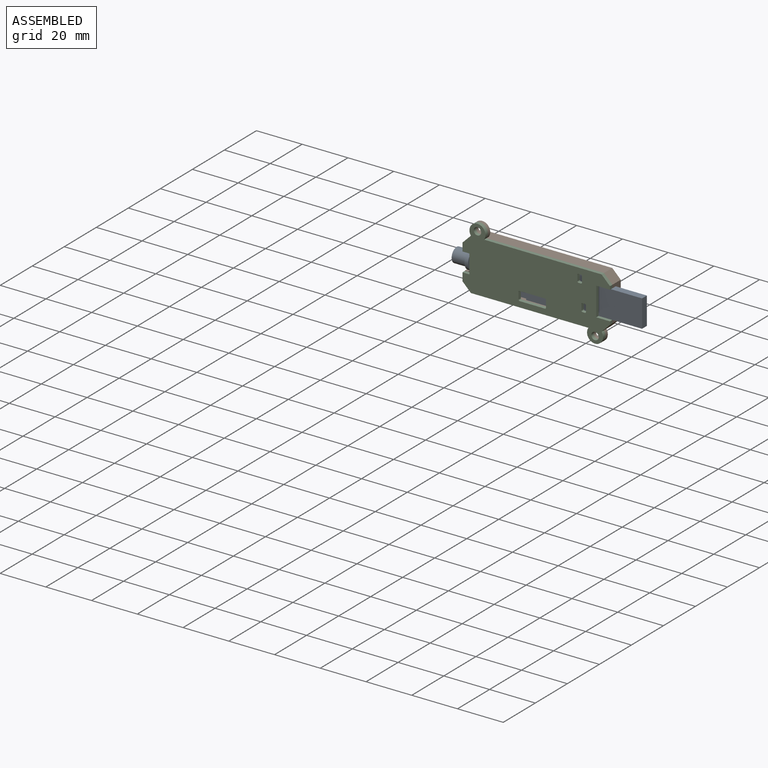
[diagram: assembled view]
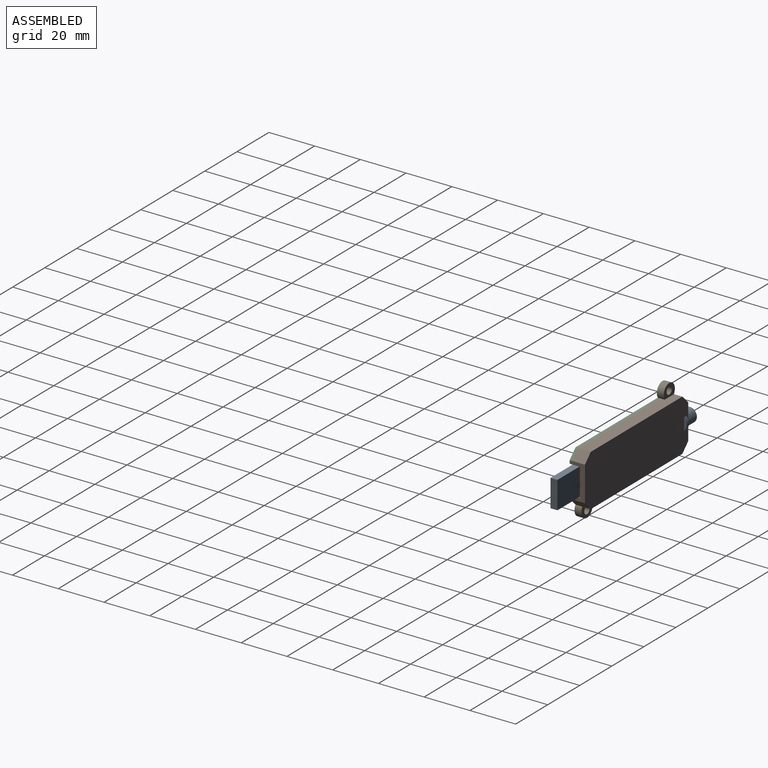
[diagram: assembled view, second angle]
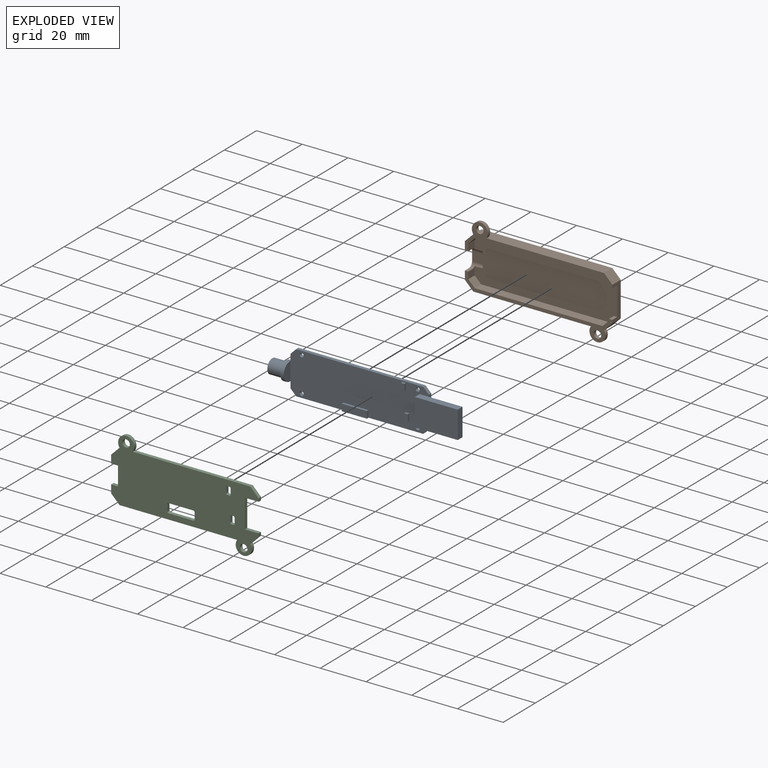
[diagram: exploded view]
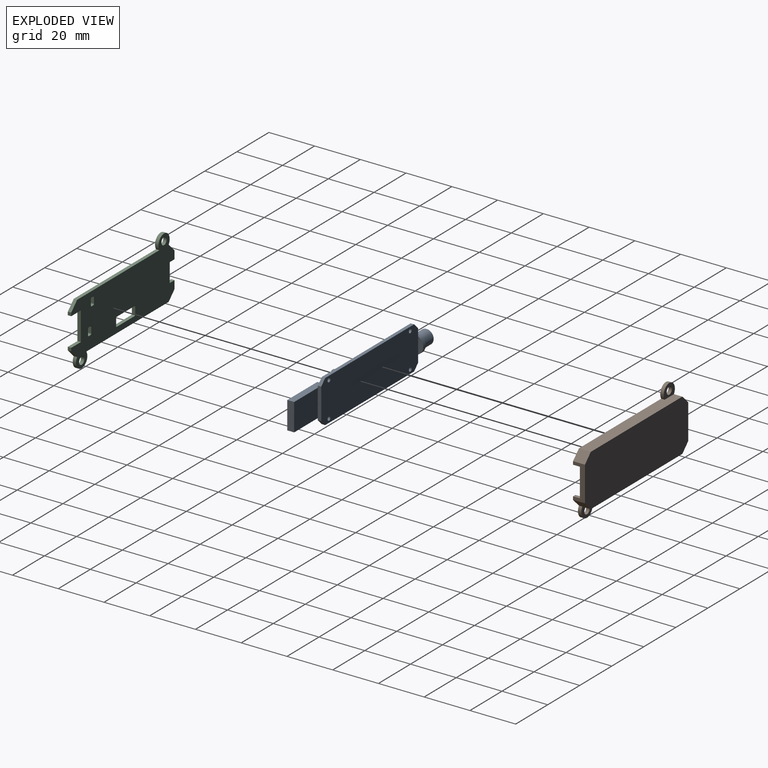
[diagram: exploded view, second angle]
ASSEMBLY  parts=3 mates=2
PART A: 41 faces, bbox 83x8x18.6 mm
  f0: plane 8x4.25mm, normal (1,0,0), area 27.1mm2, adj f1,f7
  f1: cylinder r=4mm len=8mm, axis (1,0,0), area 37.7mm2, adj f0,f2,f3,f6,f10
  f2: plane 8x8mm, normal (-1,0,0), area 19.6mm2, adj f1,f4
  f3: plane 7.19x2.25mm, normal (1,0,0), area 11.6mm2, adj f1,f12
  f4: cylinder r=3.12mm len=6.25mm, axis (1,0,0), area 122.7mm2, adj f2,f5
  f5: plane 6.25x6.25mm, normal (-1,0,0), area 30.7mm2, adj f4
  f6: plane 3.22x1.5mm, normal (-1,0,0), area 4.5mm2, adj f1,f7,f12,f15
  f7: plane 60.5x18.63mm, normal (0,-1,0), area 1015mm2, adj f0,f6,f8,f9,f10,f11,f13,f14
  f8: plane 13.63x1.5mm, normal (1,0,0), area 20.4mm2, adj f7,f12,f13,f14,f40
  f9: plane 55.5x1.5mm, normal (0,0,1), area 83.2mm2, adj f7,f12,f13,f15
  f10: plane 3.22x1.5mm, normal (-1,0,0), area 4.5mm2, adj f1,f7,f12,f16
  f11: plane 55.5x2.5mm, normal (0,0,-1), area 94.2mm2, adj f7,f12,f14,f16,f21,f22,f24
  f12: plane 60.5x18.63mm, normal (0,1,0), area 1105mm2, adj f3,f6,f8,f9,f10,f11,f13,f14
  f13: plane 2.5x2.5mm, normal (0.71,0,0.71), area 5.3mm2, adj f7,f8,f9,f12
  f14: plane 2.5x2.5mm, normal (0.71,0,-0.71), area 5.3mm2, adj f7,f8,f11,f12
  f15: plane 2.5x2.5mm, normal (-0.71,0,0.71), area 5.3mm2, adj f6,f7,f9,f12
  f16: plane 2.5x2.5mm, normal (-0.71,0,-0.71), area 5.3mm2, adj f7,f10,f11,f12
  f17: cylinder r=0.88mm len=1.75mm, axis (0,-1,0), area 8.2mm2, adj f7,f12
  f18: cylinder r=0.88mm len=1.75mm, axis (0,-1,0), area 8.2mm2, adj f7,f12
  f19: cylinder r=0.88mm len=1.75mm, axis (0,-1,0), area 8.2mm2, adj f7,f12
  f20: cylinder r=0.88mm len=1.75mm, axis (0,-1,0), area 8.2mm2, adj f7,f12
  f21: plane 3x1mm, normal (-1,0,0), area 3mm2, adj f7,f11,f23,f24
  f22: plane 3x1mm, normal (1,0,0), area 3mm2, adj f7,f11,f23,f24
  f23: plane 11x1mm, normal (0,0,1), area 11mm2, adj f7,f21,f22,f24
  f24: plane 11x3mm, normal (0,-1,0), area 33mm2, adj f11,f21,f22,f23
  f25: plane 1.5x1mm, normal (0,0,-1), area 1.5mm2, adj f7,f26,f28,f29
  f26: plane 3x1mm, normal (1,0,0), area 3mm2, adj f7,f25,f27,f29
  f27: plane 1.5x1mm, normal (0,0,1), area 1.5mm2, adj f7,f26,f28,f29
  f28: plane 3x1mm, normal (-1,0,0), area 3mm2, adj f7,f25,f27,f29
  f29: plane 3x1.5mm, normal (0,-1,0), area 4.5mm2, adj f25,f26,f27,f28
  f30: plane 3x1mm, normal (1,0,0), area 3mm2, adj f7,f31,f33,f34
  f31: plane 1.5x1mm, normal (0,0,1), area 1.5mm2, adj f7,f30,f32,f34
  f32: plane 3x1mm, normal (-1,0,0), area 3mm2, adj f7,f31,f33,f34
  f33: plane 1.5x1mm, normal (0,0,-1), area 1.5mm2, adj f7,f30,f32,f34
  f34: plane 3x1.5mm, normal (0,-1,0), area 4.5mm2, adj f30,f31,f32,f33
  f35: plane 18.75x3mm, normal (0,0,1), area 56.2mm2, adj f7,f36,f38,f39,f40
  f36: plane 12x3mm, normal (-1,0,0), area 36mm2, adj f7,f35,f37,f39
  f37: plane 18.75x3mm, normal (0,0,-1), area 56.2mm2, adj f7,f36,f38,f39,f40
  f38: plane 12x3mm, normal (1,0,0), area 36mm2, adj f35,f37,f39,f40
  f39: plane 18.75x12mm, normal (0,-1,0), area 225mm2, adj f35,f36,f37,f38
  f40: plane 14.75x12mm, normal (0,1,0), area 177mm2, adj f8,f35,f37,f38
PART B: 36 faces, bbox 64.5x5.2x33.6 mm
  f0: plane 4x3.7mm, normal (1,0,0), area 12.4mm2, adj f1,f2,f19,f24,f29
  f1: plane 64.5x12.82mm, normal (0,-1,0), area 129.3mm2, adj f0,f4,f5,f6,f7,f8,f16,f17
  f2: plane 61.5x19.63mm, normal (0,-1,0), area 1168.4mm2, adj f0,f12,f13,f14,f15,f16,f17,f18
  f3: plane 5.2x3.67mm, normal (-0.71,0,0.71), area 27mm2, adj f4,f10,f11,f20,f31
  f4: plane 15.29x5.2mm, normal (-1,0,0), area 45.2mm2, adj f1,f3,f5,f11,f20,f24,f25,f26
  f5: plane 5.2x3.67mm, normal (-0.71,0,-0.71), area 27mm2, adj f1,f4,f6,f11
  f6: plane 57.16x5.2mm, normal (0,0,-1), area 288.6mm2, adj f1,f5,f7,f11,f34,f35
  f7: plane 5.2x3.67mm, normal (0.71,0,-0.71), area 27mm2, adj f1,f6,f8,f11,f34
  f8: plane 15.29x5.2mm, normal (1,0,0), area 42mm2, adj f1,f7,f9,f11,f20,f21,f22,f23
  f9: plane 5.2x3.67mm, normal (0.71,0,0.71), area 27mm2, adj f8,f10,f11,f20
  f10: plane 57.16x5.2mm, normal (0,0,1), area 288.6mm2, adj f3,f9,f11,f20,f31,f32
  f11: plane 64.5x22.63mm, normal (0,1,0), area 1432.7mm2, adj f3,f4,f5,f6,f7,f8,f9,f10
  f12: plane 4x3.7mm, normal (1,0,0), area 12.4mm2, adj f2,f13,f20,f25,f28
  f13: plane 4x2.79mm, normal (0.71,0,-0.71), area 15.8mm2, adj f2,f12,f14,f20
  f14: plane 55.91x4mm, normal (0,0,-1), area 223.7mm2, adj f2,f13,f15,f20
  f15: plane 4x2.79mm, normal (-0.71,0,-0.71), area 15.8mm2, adj f2,f14,f16,f20
  f16: plane 14.04x4mm, normal (-1,0,0), area 18.7mm2, adj f1,f2,f15,f17,f20,f21,f22,f23
  f17: plane 4x2.79mm, normal (-0.71,0,0.71), area 15.8mm2, adj f1,f2,f16,f18
  f18: plane 55.91x4mm, normal (0,0,1), area 223.7mm2, adj f1,f2,f17,f19
  f19: plane 4x2.79mm, normal (0.71,0,0.71), area 15.8mm2, adj f0,f1,f2,f18
  f20: plane 64.5x12.82mm, normal (0,-1,0), area 129.3mm2, adj f3,f4,f8,f9,f10,f12,f13,f14
  f21: plane 12.5x1.5mm, normal (0,-1,0), area 18.8mm2, adj f8,f16,f22,f23
  f22: plane 3x1.5mm, normal (0,0,-1), area 4.5mm2, adj f8,f16,f20,f21
  f23: plane 3x1.5mm, normal (0,0,1), area 4.5mm2, adj f1,f8,f16,f21
  f24: plane 2.5x1.5mm, normal (0,0,1), area 3.8mm2, adj f0,f1,f4,f29
  f25: plane 2.5x1.5mm, normal (0,0,-1), area 3.8mm2, adj f4,f12,f20,f28
  f26: plane 5x4mm, normal (0,-1,0), area 20mm2, adj f4,f27,f28,f29
  f27: plane 6.65x0.5mm, normal (-1,0,0), area 2.9mm2, adj f2,f26,f28,f29
  f28: cylinder r=2mm len=5mm, axis (-1,0,0), area 9.8mm2, adj f2,f4,f12,f25,f26,f27
  f29: cylinder r=2mm len=5mm, axis (1,0,0), area 9.8mm2, adj f0,f2,f4,f24,f26,f27
  f30: cylinder r=1.62mm len=3.25mm, axis (0,-1,0), area 15.3mm2, adj f20,f32
  f31: cylinder r=3.5mm len=7mm, axis (0,-1,0), area 22.9mm2, adj f3,f10,f20,f32
  f32: plane 7x5.5mm, normal (0,1,0), area 24.1mm2, adj f10,f30,f31
  f33: cylinder r=1.62mm len=3.25mm, axis (0,-1,0), area 15.3mm2, adj f1,f35
  f34: cylinder r=3.5mm len=7mm, axis (0,-1,0), area 22.9mm2, adj f1,f6,f7,f35
  f35: plane 7x5.5mm, normal (0,1,0), area 24.1mm2, adj f6,f33,f34
PART C: 46 faces, bbox 64.5x1.5x33.6 mm
  f0: plane 64.5x33.63mm, normal (0,-1,0), area 1319.9mm2, adj f2,f3,f4,f5,f6,f7,f8,f9
  f1: plane 64.5x33.63mm, normal (0,1,0), area 1319.9mm2, adj f2,f3,f4,f5,f6,f7,f8,f9
  f2: plane 1.5x1.39mm, normal (-1,0,0), area 2.1mm2, adj f0,f1,f4,f16
  f3: plane 3.52x1.5mm, normal (1,0,0), area 5.3mm2, adj f0,f1,f8,f12
  f4: plane 3.67x3.67mm, normal (-0.71,0,0.71), area 7.8mm2, adj f0,f1,f2,f19
  f5: plane 1.5x1.39mm, normal (-1,0,0), area 2.1mm2, adj f0,f1,f6,f17
  f6: plane 3.67x3.67mm, normal (-0.71,0,-0.71), area 7.8mm2, adj f0,f1,f5,f7
  f7: plane 51.41x1.5mm, normal (0,0,-1), area 77.1mm2, adj f0,f1,f6,f21
  f8: plane 3.67x3.67mm, normal (0.71,0,-0.71), area 7.8mm2, adj f0,f1,f3,f21
  f9: plane 3.52x1.5mm, normal (1,0,0), area 5.3mm2, adj f0,f1,f10,f13
  f10: plane 3.67x3.67mm, normal (0.71,0,0.71), area 7.8mm2, adj f0,f1,f9,f11
  f11: plane 51.41x1.5mm, normal (0,0,1), area 77.1mm2, adj f0,f1,f10,f19
  f12: plane 3x1.5mm, normal (0,0,1), area 4.5mm2, adj f0,f1,f3,f14
  f13: plane 3x1.5mm, normal (0,0,-1), area 4.5mm2, adj f0,f1,f9,f14
  f14: plane 8.25x1.5mm, normal (1,0,0), area 12.4mm2, adj f0,f1,f12,f13
  f15: plane 12.5x1.5mm, normal (-1,0,0), area 18.8mm2, adj f0,f1,f16,f17
  f16: plane 6x1.5mm, normal (0,0,-1), area 9mm2, adj f0,f1,f2,f15
  f17: plane 6x1.5mm, normal (0,0,1), area 9mm2, adj f0,f1,f5,f15
  f18: cylinder r=1.62mm len=3.25mm, axis (0,-1,0), area 15.3mm2, adj f0,f1
  f19: cylinder r=3.5mm len=7mm, axis (0,-1,0), area 22.9mm2, adj f0,f1,f4,f11
  f20: cylinder r=1.62mm len=3.25mm, axis (0,-1,0), area 15.3mm2, adj f0,f1
  f21: cylinder r=3.5mm len=7mm, axis (0,-1,0), area 22.9mm2, adj f0,f1,f7,f8
  f22: plane 1.5x1mm, normal (0,0,-1), area 1.5mm2, adj f0,f1,f42,f45
  f23: plane 2.5x1.5mm, normal (1,0,0), area 3.8mm2, adj f0,f1,f44,f45
  f24: plane 1.5x1mm, normal (0,0,1), area 1.5mm2, adj f0,f1,f43,f44
  f25: plane 2.5x1.5mm, normal (-1,0,0), area 3.8mm2, adj f0,f1,f42,f43
  f26: plane 2.5x1.5mm, normal (1,0,0), area 3.8mm2, adj f0,f1,f38,f41
  f27: plane 1.5x1mm, normal (0,0,1), area 1.5mm2, adj f0,f1,f38,f39
  f28: plane 2.5x1.5mm, normal (-1,0,0), area 3.8mm2, adj f0,f1,f39,f40
  f29: plane 1.5x1mm, normal (0,0,-1), area 1.5mm2, adj f0,f1,f40,f41
  f30: plane 3x1.5mm, normal (-1,0,0), area 4.5mm2, adj f0,f1,f34,f37
  f31: plane 11x1.5mm, normal (0,0,-1), area 16.5mm2, adj f0,f1,f36,f37
  f32: plane 3x1.5mm, normal (1,0,0), area 4.5mm2, adj f0,f1,f35,f36
  f33: plane 11x1.5mm, normal (0,0,1), area 16.5mm2, adj f0,f1,f34,f35
  f34: cylinder r=0.5mm len=1.5mm, axis (0,1,0), area 1.2mm2, adj f0,f1,f30,f33
  f35: cylinder r=0.5mm len=1.5mm, axis (0,-1,0), area 1.2mm2, adj f0,f1,f32,f33
  f36: cylinder r=0.5mm len=1.5mm, axis (0,1,0), area 1.2mm2, adj f0,f1,f31,f32
  f37: cylinder r=0.5mm len=1.5mm, axis (0,-1,0), area 1.2mm2, adj f0,f1,f30,f31
  f38: cylinder r=0.5mm len=1.5mm, axis (0,-1,0), area 1.2mm2, adj f0,f1,f26,f27
  f39: cylinder r=0.5mm len=1.5mm, axis (0,1,0), area 1.2mm2, adj f0,f1,f27,f28
  f40: cylinder r=0.5mm len=1.5mm, axis (0,-1,0), area 1.2mm2, adj f0,f1,f28,f29
  f41: cylinder r=0.5mm len=1.5mm, axis (0,1,0), area 1.2mm2, adj f0,f1,f26,f29
  f42: cylinder r=0.5mm len=1.5mm, axis (0,1,0), area 1.2mm2, adj f0,f1,f22,f25
  f43: cylinder r=0.5mm len=1.5mm, axis (0,-1,0), area 1.2mm2, adj f0,f1,f24,f25
  f44: cylinder r=0.5mm len=1.5mm, axis (0,1,0), area 1.2mm2, adj f0,f1,f23,f24
  f45: cylinder r=0.5mm len=1.5mm, axis (0,-1,0), area 1.2mm2, adj f0,f1,f22,f23
PLACE A t=(-0.58,4.07,-2.32)mm
PLACE B t=(-1.16,4.82,-2.32)mm
PLACE C rot(axis=(0,1,0),180deg) t=(-1.16,0.82,-2.32)mm
MATE fastened A.f12 <-> B.f2  axis (0,1,0) through (-0.58,4.82,-2.32)mm
MATE fastened C.f1 <-> B.f1  axis (0,1,0) through (-4.03,0.82,-13.63)mm
